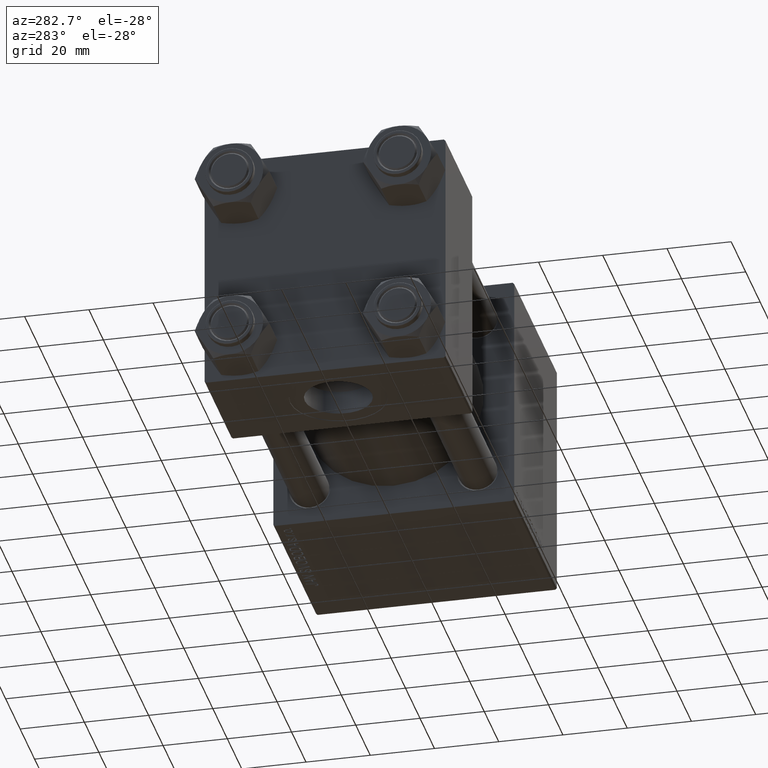
[diagram: clean part render]
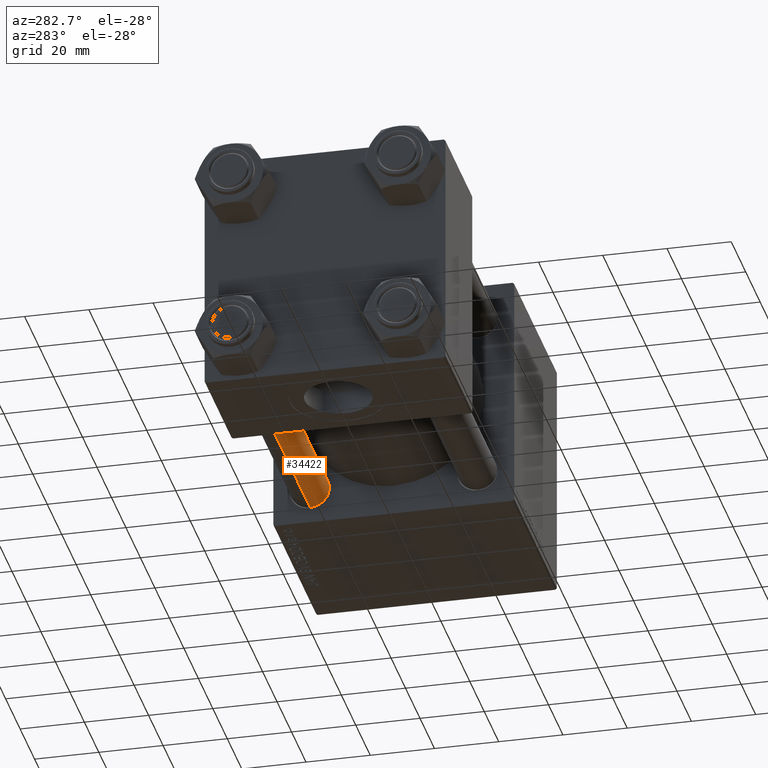
[diagram: same view with one face highlighted and labeled with its STEP entity id]
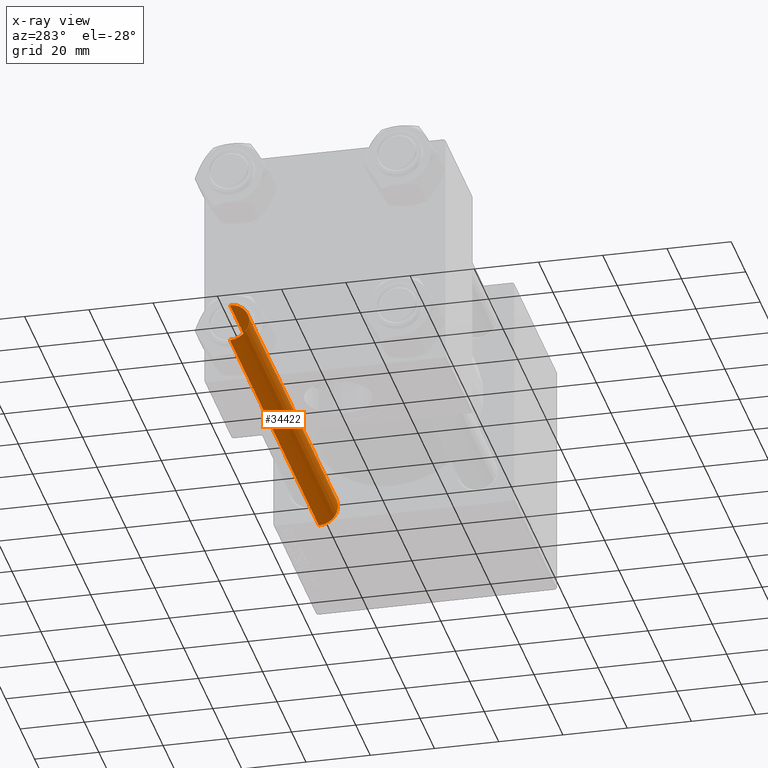
[diagram: x-ray of the same camera — body ghosted, the highlighted face saturated]
A machine part, auxiliary view. The second image highlights one B-rep face of the part: STEP entity #34422.
The next image is the same camera in x-ray: the body ghosted, the highlighted face saturated — about 1% of this face is hidden behind the body in this view.
In plain terms, the highlighted cylindrical surface (edge-blend (fillet) strip) has radius 6 mm, axis along (1, -0, -0).
Its self-contained STEP definition (entity closure, byte-faithful):
#904 = EDGE_LOOP ( 'NONE', ( #28853, #45798, #32213, #46600 ) ) ;
#3795 = EDGE_CURVE ( 'NONE', #34484, #18796, #33601, .T. ) ;
#4112 = CARTESIAN_POINT ( 'NONE',  ( -6.000000000000000888, 0.000000000000000000, 123.5000000000000426 ) ) ;
#6136 = DIRECTION ( 'NONE',  ( -0.000000000000000000, -0.000000000000000000, 1.000000000000000000 ) ) ;
#7387 = CARTESIAN_POINT ( 'NONE',  ( 6.000000000000000888, 7.347880794884120722E-16, 0.4999999999999865663 ) ) ;
#8002 = EDGE_CURVE ( 'NONE', #34484, #45919, #45741, .T. ) ;
#9080 = CIRCLE ( 'NONE', #22070, 6.000000000000000888 ) ;
#15723 = AXIS2_PLACEMENT_3D ( 'NONE', #38973, #35180, #46846 ) ;
#16611 = DIRECTION ( 'NONE',  ( -0.000000000000000000, -0.000000000000000000, -1.000000000000000000 ) ) ;
#18110 = CARTESIAN_POINT ( 'NONE',  ( 6.000000000000000888, 7.347880794884120722E-16, 124.0000000000000000 ) ) ;
#18796 = VERTEX_POINT ( 'NONE', #7387 ) ;
#19579 = LINE ( 'NONE', #27191, #47191 ) ;
#22070 = AXIS2_PLACEMENT_3D ( 'NONE', #48527, #6136, #40655 ) ;
#23973 = FACE_OUTER_BOUND ( 'NONE', #904, .T. ) ;
#24734 = CYLINDRICAL_SURFACE ( 'NONE', #47756, 6.000000000000000888 ) ;
#27191 = CARTESIAN_POINT ( 'NONE',  ( -6.000000000000000888, 0.000000000000000000, 124.0000000000000000 ) ) ;
#28561 = VECTOR ( 'NONE', #44763, 1000.000000000000000 ) ;
#28853 = ORIENTED_EDGE ( 'NONE', *, *, #3795, .F. ) ;
#29793 = CARTESIAN_POINT ( 'NONE',  ( 6.000000000000000888, 7.347880794884120722E-16, 123.5000000000000426 ) ) ;
#32213 = ORIENTED_EDGE ( 'NONE', *, *, #48671, .T. ) ;
#33601 = LINE ( 'NONE', #18110, #28561 ) ;
#33613 = CARTESIAN_POINT ( 'NONE',  ( -6.000000000000000888, 0.000000000000000000, 0.4999999999999865663 ) ) ;
#34422 = ADVANCED_FACE ( 'NONE', ( #23973 ), #24734, .T. ) ;
#34484 = VERTEX_POINT ( 'NONE', #29793 ) ;
#34583 = DIRECTION ( 'NONE',  ( -0.000000000000000000, -0.000000000000000000, -1.000000000000000000 ) ) ;
#35180 = DIRECTION ( 'NONE',  ( 0.000000000000000000, 0.000000000000000000, -1.000000000000000000 ) ) ;
#35912 = CARTESIAN_POINT ( 'NONE',  ( 0.000000000000000000, 0.000000000000000000, 124.0000000000000000 ) ) ;
#38973 = CARTESIAN_POINT ( 'NONE',  ( 0.000000000000000000, 0.000000000000000000, 123.5000000000000426 ) ) ;
#40655 = DIRECTION ( 'NONE',  ( 1.000000000000000000, 0.000000000000000000, 0.000000000000000000 ) ) ;
#44763 = DIRECTION ( 'NONE',  ( -0.000000000000000000, -0.000000000000000000, -1.000000000000000000 ) ) ;
#45097 = EDGE_CURVE ( 'NONE', #47990, #18796, #9080, .T. ) ;
#45741 = CIRCLE ( 'NONE', #15723, 6.000000000000000888 ) ;
#45798 = ORIENTED_EDGE ( 'NONE', *, *, #8002, .T. ) ;
#45919 = VERTEX_POINT ( 'NONE', #4112 ) ;
#46600 = ORIENTED_EDGE ( 'NONE', *, *, #45097, .T. ) ;
#46846 = DIRECTION ( 'NONE',  ( 1.000000000000000000, 0.000000000000000000, 0.000000000000000000 ) ) ;
#47191 = VECTOR ( 'NONE', #34583, 1000.000000000000000 ) ;
#47582 = DIRECTION ( 'NONE',  ( -1.000000000000000000, 0.000000000000000000, 0.000000000000000000 ) ) ;
#47756 = AXIS2_PLACEMENT_3D ( 'NONE', #35912, #16611, #47582 ) ;
#47990 = VERTEX_POINT ( 'NONE', #33613 ) ;
#48527 = CARTESIAN_POINT ( 'NONE',  ( 0.000000000000000000, 0.000000000000000000, 0.4999999999999865663 ) ) ;
#48671 = EDGE_CURVE ( 'NONE', #45919, #47990, #19579, .T. ) ;